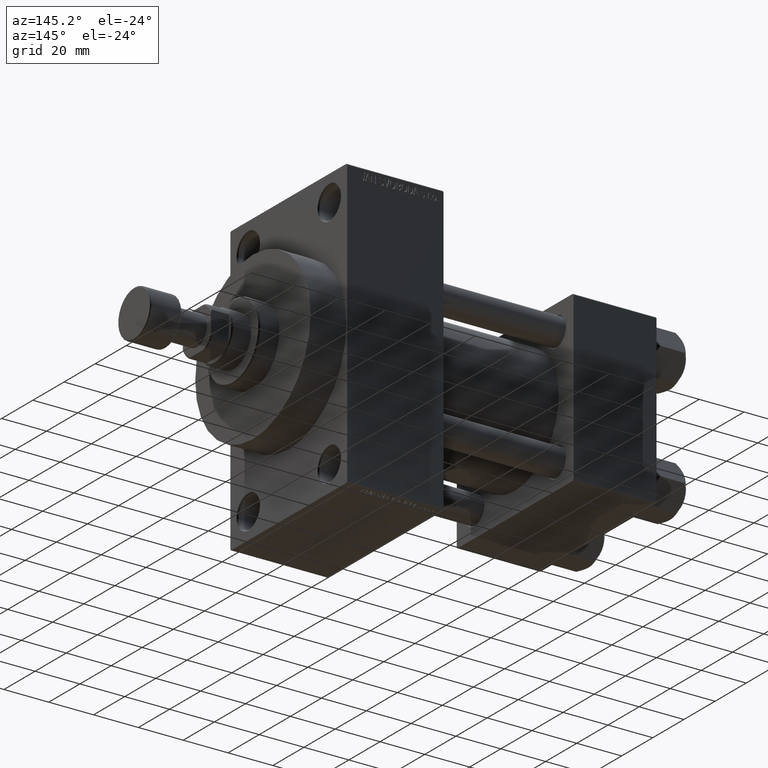
[diagram: clean part render]
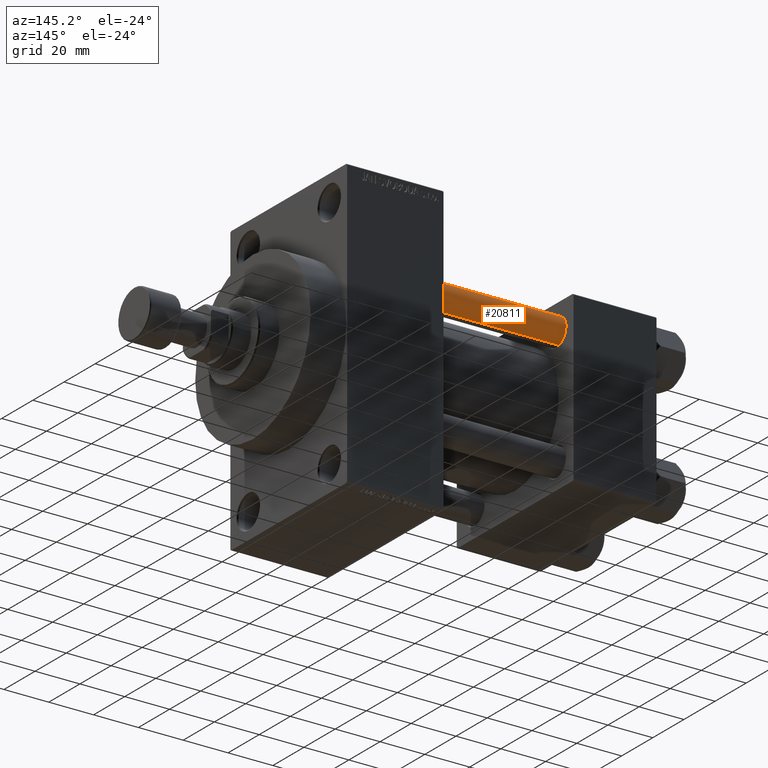
[diagram: same view with one face highlighted and labeled with its STEP entity id]
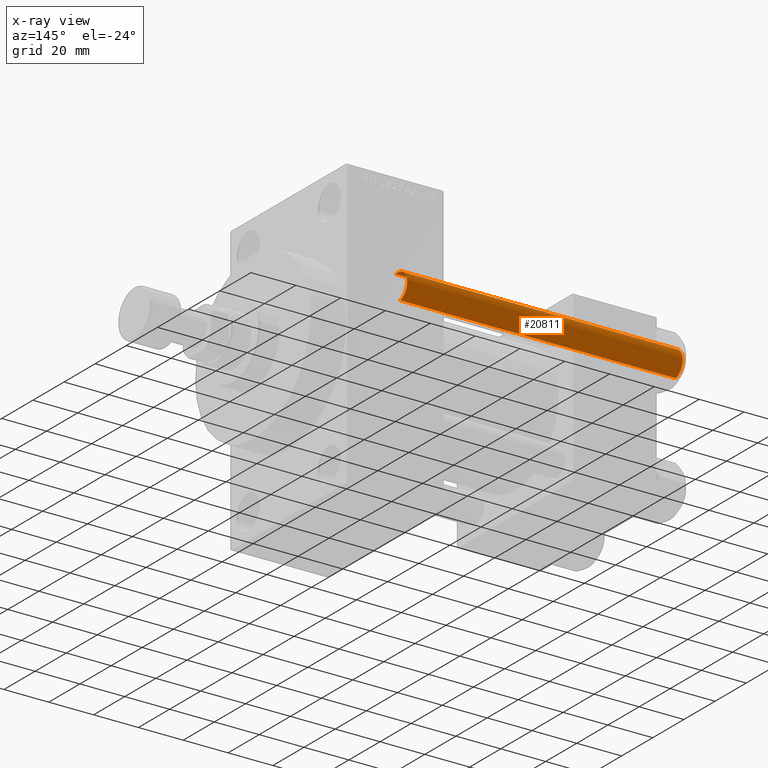
[diagram: x-ray of the same camera — body ghosted, the highlighted face saturated]
A machine part, auxiliary view. The second image highlights one B-rep face of the part: STEP entity #20811.
The next image is the same camera in x-ray: the body ghosted, the highlighted face saturated — about 0% of this face is hidden behind the body in this view.
In plain terms, the highlighted cylindrical surface (edge-blend (fillet) strip) has radius 6 mm, axis along (-1, -0, 0).
Its self-contained STEP definition (entity closure, byte-faithful):
#940 = CARTESIAN_POINT ( 'NONE',  ( 6.000000000000000888, 7.347880794884120722E-16, 123.5000000000000426 ) ) ;
#2737 = DIRECTION ( 'NONE',  ( -0.000000000000000000, -0.000000000000000000, -1.000000000000000000 ) ) ;
#4804 = VECTOR ( 'NONE', #46732, 1000.000000000000000 ) ;
#12340 = ORIENTED_EDGE ( 'NONE', *, *, #39469, .F. ) ;
#13114 = AXIS2_PLACEMENT_3D ( 'NONE', #14000, #30106, #18793 ) ;
#14000 = CARTESIAN_POINT ( 'NONE',  ( 0.000000000000000000, 0.000000000000000000, 0.4999999999999865663 ) ) ;
#17486 = AXIS2_PLACEMENT_3D ( 'NONE', #38247, #19477, #19004 ) ;
#17578 = VERTEX_POINT ( 'NONE', #940 ) ;
#18793 = DIRECTION ( 'NONE',  ( 1.000000000000000000, 0.000000000000000000, 0.000000000000000000 ) ) ;
#19004 = DIRECTION ( 'NONE',  ( -1.000000000000000000, 0.000000000000000000, 0.000000000000000000 ) ) ;
#19477 = DIRECTION ( 'NONE',  ( -0.000000000000000000, -0.000000000000000000, -1.000000000000000000 ) ) ;
#20811 = ADVANCED_FACE ( 'NONE', ( #34168 ), #37778, .T. ) ;
#20968 = LINE ( 'NONE', #45789, #4804 ) ;
#21013 = LINE ( 'NONE', #24866, #27952 ) ;
#21462 = CARTESIAN_POINT ( 'NONE',  ( 0.000000000000000000, 0.000000000000000000, 123.5000000000000426 ) ) ;
#23132 = VERTEX_POINT ( 'NONE', #24255 ) ;
#24255 = CARTESIAN_POINT ( 'NONE',  ( -6.000000000000000888, 0.000000000000000000, 0.4999999999999865663 ) ) ;
#24806 = VERTEX_POINT ( 'NONE', #47483 ) ;
#24866 = CARTESIAN_POINT ( 'NONE',  ( 6.000000000000000888, 7.347880794884120722E-16, 124.0000000000000000 ) ) ;
#25238 = ORIENTED_EDGE ( 'NONE', *, *, #35330, .T. ) ;
#27362 = EDGE_LOOP ( 'NONE', ( #36211, #42442, #25238, #12340 ) ) ;
#27952 = VECTOR ( 'NONE', #2737, 1000.000000000000000 ) ;
#28903 = VERTEX_POINT ( 'NONE', #38616 ) ;
#29296 = CIRCLE ( 'NONE', #46206, 6.000000000000000888 ) ;
#30106 = DIRECTION ( 'NONE',  ( -0.000000000000000000, -0.000000000000000000, 1.000000000000000000 ) ) ;
#33869 = CIRCLE ( 'NONE', #13114, 6.000000000000000888 ) ;
#34168 = FACE_OUTER_BOUND ( 'NONE', #27362, .T. ) ;
#35330 = EDGE_CURVE ( 'NONE', #28903, #23132, #33869, .T. ) ;
#36201 = EDGE_CURVE ( 'NONE', #24806, #17578, #29296, .T. ) ;
#36211 = ORIENTED_EDGE ( 'NONE', *, *, #36201, .T. ) ;
#37778 = CYLINDRICAL_SURFACE ( 'NONE', #17486, 6.000000000000000888 ) ;
#38247 = CARTESIAN_POINT ( 'NONE',  ( 0.000000000000000000, 0.000000000000000000, 124.0000000000000000 ) ) ;
#38616 = CARTESIAN_POINT ( 'NONE',  ( 6.000000000000000888, 7.347880794884120722E-16, 0.4999999999999865663 ) ) ;
#39469 = EDGE_CURVE ( 'NONE', #24806, #23132, #20968, .T. ) ;
#42074 = EDGE_CURVE ( 'NONE', #17578, #28903, #21013, .T. ) ;
#42442 = ORIENTED_EDGE ( 'NONE', *, *, #42074, .T. ) ;
#42657 = DIRECTION ( 'NONE',  ( 0.000000000000000000, 0.000000000000000000, -1.000000000000000000 ) ) ;
#43133 = DIRECTION ( 'NONE',  ( 1.000000000000000000, 0.000000000000000000, 0.000000000000000000 ) ) ;
#45789 = CARTESIAN_POINT ( 'NONE',  ( -6.000000000000000888, 0.000000000000000000, 124.0000000000000000 ) ) ;
#46206 = AXIS2_PLACEMENT_3D ( 'NONE', #21462, #42657, #43133 ) ;
#46732 = DIRECTION ( 'NONE',  ( -0.000000000000000000, -0.000000000000000000, -1.000000000000000000 ) ) ;
#47483 = CARTESIAN_POINT ( 'NONE',  ( -6.000000000000000888, 0.000000000000000000, 123.5000000000000426 ) ) ;